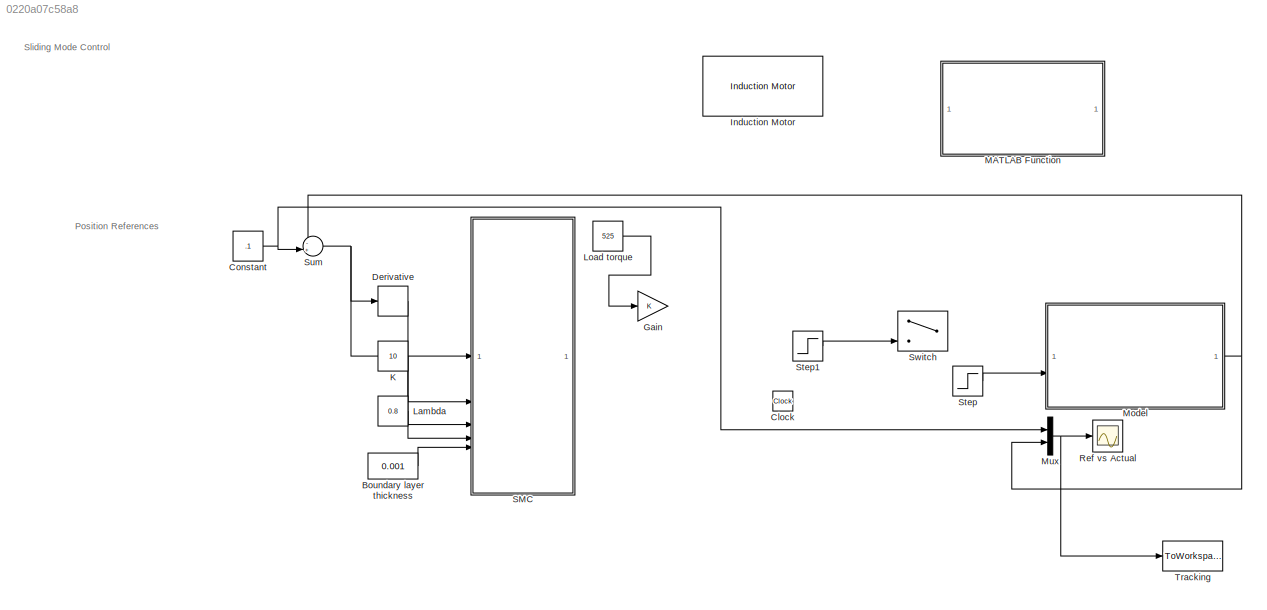
MODEL slx_0220a07c58a8
KIND model
CONFIG AbsTol = auto
CONFIG EnableMultiTasking = off
CONFIG FixedStep = auto
CONFIG MaxStep = auto
CONFIG MinStep = auto
CONFIG RelTol = 1e-3
CONFIG SampleTimeConstraint = Unconstrained
CONFIG SolverName = VariableStepAuto
CONFIG StartTime = 0.0
CONFIG StopTime = 10.0
BLOCK [Constant] Boundary layer thickness
  Value = 0.001
BLOCK [Clock] Clock
BLOCK [Constant] Constant
  Value = .1
BLOCK [Derivative] Derivative
BLOCK [Gain] Gain
BLOCK [Reference] Induction Motor  REF=autolibim/Induction Motor
  LibrarySourceBlock = mcblib/Electrical Systems/Motors/Induction Motor
  SourceBlock = autolibim/Induction Motor
  SourceType = Induction Motor
BLOCK [Constant] K
  Value = 10
BLOCK [Constant] Lambda
  Value = 0.8
BLOCK [Constant] Load torque
  Value = 525
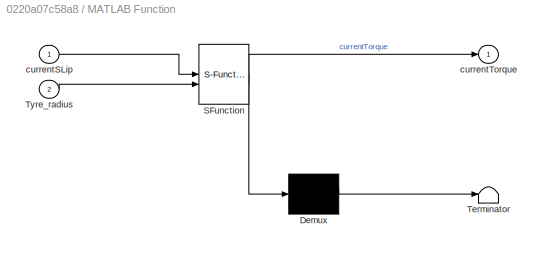
BLOCK [SubSystem] MATLAB Function
  ErrorFcn = Stateflow.Translate.translate
  LibrarySourceBlock = simulink/User-Defined\nFunctions/MATLAB Function
  PermitHierarchicalResolution = ExplicitOnly
  SFBlockType = MATLAB Function
  TreatAsAtomicUnit = on
BLOCK [Demux] MATLAB Function/ Demux 
  Outputs = 1
BLOCK [S-Function] MATLAB Function/ SFunction 
  EnableBusSupport = on
  FunctionName = sf_sfun
  PortCounts = [2 2]
  SFcnIsStateOwnerBlock = off
  SFunctionDeploymentMode = off
  Tag = Stateflow S-Function 1
BLOCK [Terminator] MATLAB Function/ Terminator 
BLOCK [Inport] MATLAB Function/Tyre_radius
  Port = 2
BLOCK [Inport] MATLAB Function/currentSLip
BLOCK [Outport] MATLAB Function/currentTorque
BLOCK [ModelReference] Model
  ModelNameDialog = Slip_ratio.slx
  ModelReferenceVersion = 1.5
BLOCK [Mux] Mux
  DisplayOption = bar
  Inputs = 2
BLOCK [Scope] Ref vs Actual
  Floating = off
  NumInputPorts = 1
  ScopeSpecificationString = Simulink.scopes.TimeScopeBlockCfg('CurrentConfiguration', extmgr.ConfigurationSet(extmgr.Configuration('Core','General UI',true),extmgr.Configuration('Core','Source UI',true),extmgr.Configuration('Sources','WiredSimulink',true,'DataLoggingSaveFormat','Array','DataLoggingDecimation','1','DataLoggingDecimateData',true),extmgr.Configuration('Visuals','Time Domain',true,'SerializedDisplays',{struct('M...<+1616ch>
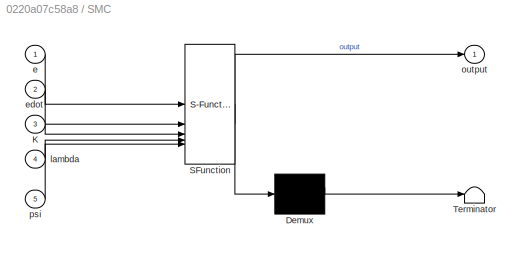
BLOCK [SubSystem] SMC
  ErrorFcn = Stateflow.Translate.translate
  PermitHierarchicalResolution = ExplicitOnly
  SFBlockType = MATLAB Function
  TreatAsAtomicUnit = on
BLOCK [Demux] SMC/ Demux 
  Outputs = 1
BLOCK [S-Function] SMC/ SFunction 
  EnableBusSupport = on
  FunctionName = sf_sfun
  PortCounts = [5 2]
  SFcnIsStateOwnerBlock = off
  SFunctionDeploymentMode = off
  Tag = Stateflow S-Function 2
BLOCK [Terminator] SMC/ Terminator 
BLOCK [Inport] SMC/K
  Port = 3
BLOCK [Inport] SMC/e
BLOCK [Inport] SMC/edot
  Port = 2
BLOCK [Inport] SMC/lambda
  Port = 4
BLOCK [Outport] SMC/output
BLOCK [Inport] SMC/psi
  Port = 5
BLOCK [Step] Step
  After = 175
  SampleTime = 0
  Time = 3
BLOCK [Step] Step1
  SampleTime = 0
BLOCK [Sum] Sum
  Inputs = -+|
BLOCK [Switch] Switch
  Criteria = u2 > Threshold
  InputSameDT = off
  SaturateOnIntegerOverflow = off
BLOCK [ToWorkspace] Tracking
  FixptAsFi = on
  MaxDataPoints = inf
  SampleTime = -1
  VariableName = tracking
ANNOTATION (root): Sliding Mode Control
ANNOTATION (root): Position References
LINE Boundary layer thickness:1 -> SMC:5
NET Constant:1 -> Mux:1, Sum:2
LINE Derivative:1 -> SMC:2
LINE K:1 -> SMC:3
LINE Lambda:1 -> SMC:4
LINE Load torque:1 -> Gain:1
NET Model:1 -> Mux:2, Sum:1
NET Mux:1 -> Ref vs Actual:1, Tracking:1
LINE Step1:1 -> Switch:3
LINE Step:1 -> Model:2
NET Sum:1 -> Derivative:1, SMC:1
note: NET lines group one-source signal fan-out (src -> all destinations, sorted); 1:1 wires keep LINE
CHART MATLAB Function states=1 transitions=1
  STATE_LABEL 'eML_blk_kernel()'
  STATE_LABEL 'SCRIPT:\nfunction currentTorque = Torque_calc(currentSLip, Tyre_radius)\n    % TCS_ACTIVE Summary of this function goes here\n\n    e = exp(1); % Mathematical constant e\n    % Friction curve as a function of slip ratio\n    c1 = 1.2801; % Coef for dry asphalt\n    c2 = 23.99; % Coef for dry asphalt\n    c3 = 0.52; % Coef for dry asphalt\n    Fn = 1350; % Normal force on one tire\n    \n\n %   plot(slip_ratio...<+368ch>'
CHART SMC states=1 transitions=1
  STATE_LABEL 'eML_blk_kernel()'
  STATE_LABEL 'SCRIPT:\nfunction output = smc(e, edot, K, lambda, psi)\n%#codegen\n\n    s = lambda * e + edot;\n        \n    if (abs(s) > psi)    \n        sat_s = sign(s);\n    else\n        sat_s = s/psi;\n    end\n    \n    output = -(edot - K * sat_s);\n\nend'
CHART  states=0 transitions=0
CHART  states=0 transitions=0
